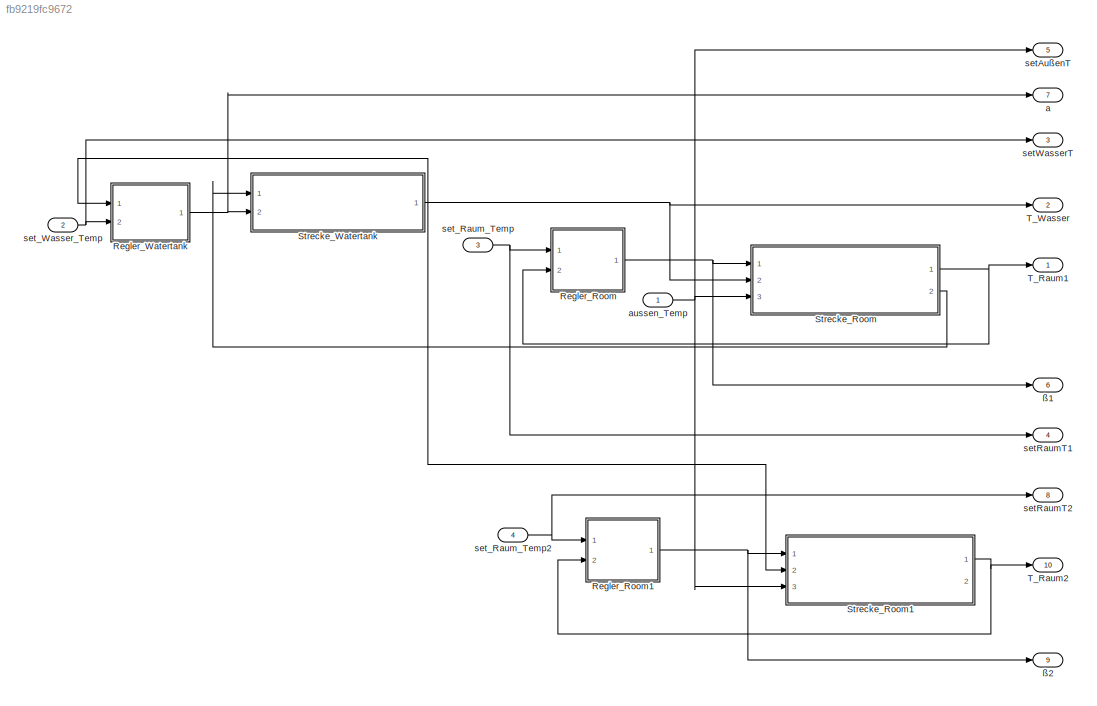
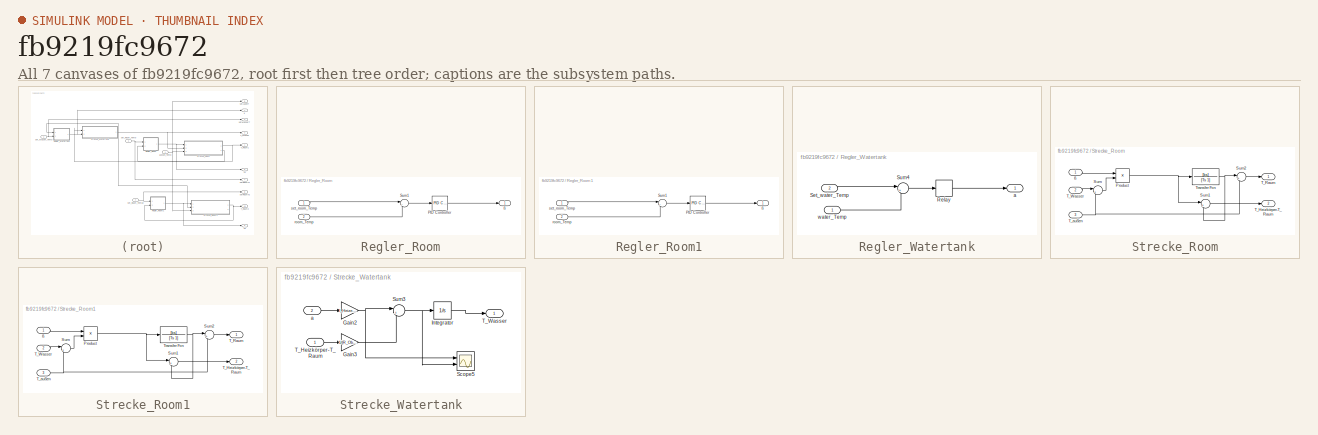
[diagram: thumbnail index - all 7 canvases of the model, root first then tree order]
MODEL slx_fb9219fc9672
KIND model
CONFIG AbsTol = auto
CONFIG EnableMultiTasking = off
CONFIG FixedStep = 0.01
CONFIG MaxStep = auto
CONFIG MinStep = auto
CONFIG RelTol = 1e-3
CONFIG SampleTimeConstraint = Unconstrained
CONFIG Solver = ode4
CONFIG SolverName = ode4
CONFIG StartTime = 0.0
CONFIG StopTime = 3600
BLOCK [SubSystem] Regler_Room
  Ports = [2, 1]
  RequestExecContextInheritance = off
  Variant = off
BLOCK [Reference] Regler_Room/PID Controller  REF=simulink/Continuous/PID Controller
  Ports = [1, 1]
  SourceBlock = simulink/Continuous/PID Controller
  SourceProductBaseCode = SL
  SourceProductName = Simulink
  SourceType = PID 1dof
BLOCK [Sum] Regler_Room/Sum1
  IconShape = round
  InputSameDT = off
  Inputs = |+-
  OutDataTypeStr = Inherit: Inherit via internal rule
  Ports = [2, 1]
  SaturateOnIntegerOverflow = off
BLOCK [Inport] Regler_Room/room_Temp
  IconDisplay = Port number
  Port = 2
BLOCK [Inport] Regler_Room/set_room_Temp
  IconDisplay = Port number
BLOCK [Outport] Regler_Room/ß
  IconDisplay = Port number
BLOCK [SubSystem] Regler_Room1
  Ports = [2, 1]
  RequestExecContextInheritance = off
  Variant = off
BLOCK [Reference] Regler_Room1/PID Controller  REF=simulink/Continuous/PID Controller
  Ports = [1, 1]
  SourceBlock = simulink/Continuous/PID Controller
  SourceProductBaseCode = SL
  SourceProductName = Simulink
  SourceType = PID 1dof
BLOCK [Sum] Regler_Room1/Sum1
  IconShape = round
  InputSameDT = off
  Inputs = |+-
  OutDataTypeStr = Inherit: Inherit via internal rule
  Ports = [2, 1]
  SaturateOnIntegerOverflow = off
BLOCK [Inport] Regler_Room1/room_Temp
  IconDisplay = Port number
  Port = 2
BLOCK [Inport] Regler_Room1/set_room_Temp
  IconDisplay = Port number
BLOCK [Outport] Regler_Room1/ß
  IconDisplay = Port number
BLOCK [SubSystem] Regler_Watertank
  Ports = [2, 1]
  RequestExecContextInheritance = off
  Variant = off
BLOCK [Relay] Regler_Watertank/Relay
  InputProcessing = Elements as channels (sample based)
  OffSwitchValue = -0.5
  OnSwitchValue = 0.5
BLOCK [Inport] Regler_Watertank/Set_water_Temp
  IconDisplay = Port number
  Port = 2
BLOCK [Sum] Regler_Watertank/Sum4
  IconShape = round
  InputSameDT = off
  Inputs = |+-
  OutDataTypeStr = Inherit: Inherit via internal rule
  Ports = [2, 1]
  SaturateOnIntegerOverflow = off
BLOCK [Outport] Regler_Watertank/a
  IconDisplay = Port number
BLOCK [Inport] Regler_Watertank/water_Temp
  IconDisplay = Port number
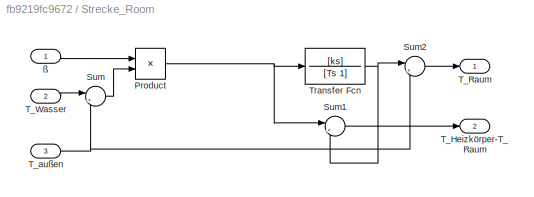
BLOCK [SubSystem] Strecke_Room
  Ports = [3, 2]
  RequestExecContextInheritance = off
  Variant = off
BLOCK [Product] Strecke_Room/Product
  InputSameDT = off
  OutDataTypeStr = Inherit: Inherit via internal rule
  Ports = [2, 1]
  RndMeth = Floor
  SaturateOnIntegerOverflow = off
BLOCK [Sum] Strecke_Room/Sum
  IconShape = round
  InputSameDT = off
  Inputs = |+-
  OutDataTypeStr = Inherit: Inherit via internal rule
  Ports = [2, 1]
  SaturateOnIntegerOverflow = off
BLOCK [Sum] Strecke_Room/Sum1
  IconShape = round
  InputSameDT = off
  Inputs = |+-
  OutDataTypeStr = Inherit: Inherit via internal rule
  Ports = [2, 1]
  SaturateOnIntegerOverflow = off
BLOCK [Sum] Strecke_Room/Sum2
  IconShape = round
  InputSameDT = off
  Inputs = |++
  OutDataTypeStr = Inherit: Inherit via internal rule
  Ports = [2, 1]
  SaturateOnIntegerOverflow = off
BLOCK [Outport] Strecke_Room/T_Heizkörper-T_Raum
  IconDisplay = Port number
  Port = 2
BLOCK [Outport] Strecke_Room/T_Raum
  IconDisplay = Port number
BLOCK [Inport] Strecke_Room/T_Wasser
  IconDisplay = Port number
  Port = 2
BLOCK [Inport] Strecke_Room/T_außen
  IconDisplay = Port number
  Port = 3
BLOCK [TransferFcn] Strecke_Room/Transfer Fcn
  Denominator = [Ts 1]
  Numerator = [ks]
BLOCK [Inport] Strecke_Room/ß
  IconDisplay = Port number
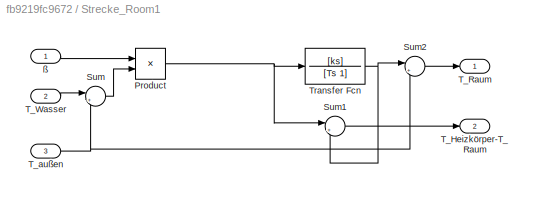
BLOCK [SubSystem] Strecke_Room1
  Ports = [3, 2]
  RequestExecContextInheritance = off
  Variant = off
BLOCK [Product] Strecke_Room1/Product
  InputSameDT = off
  OutDataTypeStr = Inherit: Inherit via internal rule
  Ports = [2, 1]
  RndMeth = Floor
  SaturateOnIntegerOverflow = off
BLOCK [Sum] Strecke_Room1/Sum
  IconShape = round
  InputSameDT = off
  Inputs = |+-
  OutDataTypeStr = Inherit: Inherit via internal rule
  Ports = [2, 1]
  SaturateOnIntegerOverflow = off
BLOCK [Sum] Strecke_Room1/Sum1
  IconShape = round
  InputSameDT = off
  Inputs = |+-
  OutDataTypeStr = Inherit: Inherit via internal rule
  Ports = [2, 1]
  SaturateOnIntegerOverflow = off
BLOCK [Sum] Strecke_Room1/Sum2
  IconShape = round
  InputSameDT = off
  Inputs = |++
  OutDataTypeStr = Inherit: Inherit via internal rule
  Ports = [2, 1]
  SaturateOnIntegerOverflow = off
BLOCK [Outport] Strecke_Room1/T_Heizkörper-T_Raum
  IconDisplay = Port number
  Port = 2
BLOCK [Outport] Strecke_Room1/T_Raum
  IconDisplay = Port number
BLOCK [Inport] Strecke_Room1/T_Wasser
  IconDisplay = Port number
  Port = 2
BLOCK [Inport] Strecke_Room1/T_außen
  IconDisplay = Port number
  Port = 3
BLOCK [TransferFcn] Strecke_Room1/Transfer Fcn
  Denominator = [Ts 1]
  Numerator = [ks]
BLOCK [Inport] Strecke_Room1/ß
  IconDisplay = Port number
BLOCK [SubSystem] Strecke_Watertank
  Ports = [2, 1]
  RequestExecContextInheritance = off
  Variant = off
BLOCK [Gain] Strecke_Watertank/Gain2
  Gain = I_Heizelement/(c_Wasser*m_Kessel)
  OutDataTypeStr = Inherit: Inherit via internal rule
  ParamDataTypeStr = Inherit: Inherit via internal rule
  SaturateOnIntegerOverflow = off
BLOCK [Gain] Strecke_Watertank/Gain3
  Gain = 1/(R_Oberflaeche*c_Wasser*m_Kessel)
  OutDataTypeStr = Inherit: Inherit via internal rule
  ParamDataTypeStr = Inherit: Inherit via internal rule
  SaturateOnIntegerOverflow = off
BLOCK [Integrator] Strecke_Watertank/Integrator
  InitialCondition = 20
  Ports = [1, 1]
BLOCK [Scope] Strecke_Watertank/Scope5
  NumInputPorts = 2
  Ports = [2]
  ScopeSpecificationString = Simulink.scopes.TimeScopeBlockCfg('CurrentConfiguration', extmgr.ConfigurationSet(extmgr.Configuration('Core','General UI',true),extmgr.Configuration('Core','Source UI',true),extmgr.Configuration('Sources','WiredSimulink',true,'DataLoggingVariableName','ScopeData5'),extmgr.Configuration('Visuals','Time Domain',true,'SerializedDisplays',{struct('MinYLimReal','-358.56091','MaxYLimReal','110.16254','...<+1462ch>
BLOCK [Sum] Strecke_Watertank/Sum3
  IconShape = round
  InputSameDT = off
  Inputs = |+-
  OutDataTypeStr = Inherit: Inherit via internal rule
  Ports = [2, 1]
  SaturateOnIntegerOverflow = off
BLOCK [Inport] Strecke_Watertank/T_Heizkörper-T_Raum
  IconDisplay = Port number
BLOCK [Outport] Strecke_Watertank/T_Wasser
  IconDisplay = Port number
BLOCK [Inport] Strecke_Watertank/a
  IconDisplay = Port number
  Port = 2
BLOCK [Outport] T_Raum1
  IconDisplay = Port number
BLOCK [Outport] T_Raum2
  IconDisplay = Port number
  Port = 10
BLOCK [Outport] T_Wasser
  IconDisplay = Port number
  Port = 2
BLOCK [Outport] a
  IconDisplay = Port number
  Port = 7
BLOCK [Inport] aussen_Temp
  IconDisplay = Port number
BLOCK [Outport] setAußenT
  IconDisplay = Port number
  Port = 5
BLOCK [Outport] setRaumT1
  IconDisplay = Port number
  Port = 4
BLOCK [Outport] setRaumT2
  IconDisplay = Port number
  Port = 8
BLOCK [Outport] setWasserT
  IconDisplay = Port number
  Port = 3
BLOCK [Inport] set_Raum_Temp
  IconDisplay = Port number
  Port = 3
BLOCK [Inport] set_Raum_Temp2
  IconDisplay = Port number
  Port = 4
BLOCK [Inport] set_Wasser_Temp
  IconDisplay = Port number
  Port = 2
BLOCK [Outport] ß1
  IconDisplay = Port number
  Port = 6
BLOCK [Outport] ß2
  IconDisplay = Port number
  Port = 9
LINE Regler_Room/PID Controller:1 -> Regler_Room/ß:1
LINE Regler_Room/Sum1:1 -> Regler_Room/PID Controller:1
LINE Regler_Room/room_Temp:1 -> Regler_Room/Sum1:2
LINE Regler_Room/set_room_Temp:1 -> Regler_Room/Sum1:1
LINE Regler_Room1/PID Controller:1 -> Regler_Room1/ß:1
LINE Regler_Room1/Sum1:1 -> Regler_Room1/PID Controller:1
LINE Regler_Room1/room_Temp:1 -> Regler_Room1/Sum1:2
LINE Regler_Room1/set_room_Temp:1 -> Regler_Room1/Sum1:1
NET Regler_Room1:1 -> Strecke_Room1:1, ß2:1
NET Regler_Room:1 -> Strecke_Room:1, ß1:1
LINE Regler_Watertank/Relay:1 -> Regler_Watertank/a:1
LINE Regler_Watertank/Set_water_Temp:1 -> Regler_Watertank/Sum4:1
LINE Regler_Watertank/Sum4:1 -> Regler_Watertank/Relay:1
LINE Regler_Watertank/water_Temp:1 -> Regler_Watertank/Sum4:2
NET Regler_Watertank:1 -> Strecke_Watertank:2, a:1
NET Strecke_Room/Product:1 -> Strecke_Room/Sum1:1, Strecke_Room/Transfer Fcn:1
LINE Strecke_Room/Sum1:1 -> Strecke_Room/T_Heizkörper-T_Raum:1
LINE Strecke_Room/Sum2:1 -> Strecke_Room/T_Raum:1
LINE Strecke_Room/Sum:1 -> Strecke_Room/Product:2
LINE Strecke_Room/T_Wasser:1 -> Strecke_Room/Sum:1
NET Strecke_Room/T_außen:1 -> Strecke_Room/Sum2:2, Strecke_Room/Sum:2
NET Strecke_Room/Transfer Fcn:1 -> Strecke_Room/Sum1:2, Strecke_Room/Sum2:1
LINE Strecke_Room/ß:1 -> Strecke_Room/Product:1
NET Strecke_Room1/Product:1 -> Strecke_Room1/Sum1:1, Strecke_Room1/Transfer Fcn:1
LINE Strecke_Room1/Sum1:1 -> Strecke_Room1/T_Heizkörper-T_Raum:1
LINE Strecke_Room1/Sum2:1 -> Strecke_Room1/T_Raum:1
LINE Strecke_Room1/Sum:1 -> Strecke_Room1/Product:2
LINE Strecke_Room1/T_Wasser:1 -> Strecke_Room1/Sum:1
NET Strecke_Room1/T_außen:1 -> Strecke_Room1/Sum2:2, Strecke_Room1/Sum:2
NET Strecke_Room1/Transfer Fcn:1 -> Strecke_Room1/Sum1:2, Strecke_Room1/Sum2:1
LINE Strecke_Room1/ß:1 -> Strecke_Room1/Product:1
NET Strecke_Room1:1 -> Regler_Room1:2, T_Raum2:1
NET Strecke_Room:1 -> Regler_Room:2, T_Raum1:1
LINE Strecke_Room:2 -> Strecke_Watertank:1
NET Strecke_Watertank/Gain2:1 -> Strecke_Watertank/Scope5:1, Strecke_Watertank/Sum3:1
LINE Strecke_Watertank/Gain3:1 -> Strecke_Watertank/Sum3:2
LINE Strecke_Watertank/Integrator:1 -> Strecke_Watertank/T_Wasser:1
NET Strecke_Watertank/Sum3:1 -> Strecke_Watertank/Integrator:1, Strecke_Watertank/Scope5:2
LINE Strecke_Watertank/T_Heizkörper-T_Raum:1 -> Strecke_Watertank/Gain3:1
LINE Strecke_Watertank/a:1 -> Strecke_Watertank/Gain2:1
NET Strecke_Watertank:1 -> Regler_Watertank:1, Strecke_Room1:2, Strecke_Room:2, T_Wasser:1
NET aussen_Temp:1 -> Strecke_Room1:3, Strecke_Room:3, setAußenT:1
NET set_Raum_Temp2:1 -> Regler_Room1:1, setRaumT2:1
NET set_Raum_Temp:1 -> Regler_Room:1, setRaumT1:1
NET set_Wasser_Temp:1 -> Regler_Watertank:2, setWasserT:1
note: NET lines group one-source signal fan-out (src -> all destinations, sorted); 1:1 wires keep LINE
